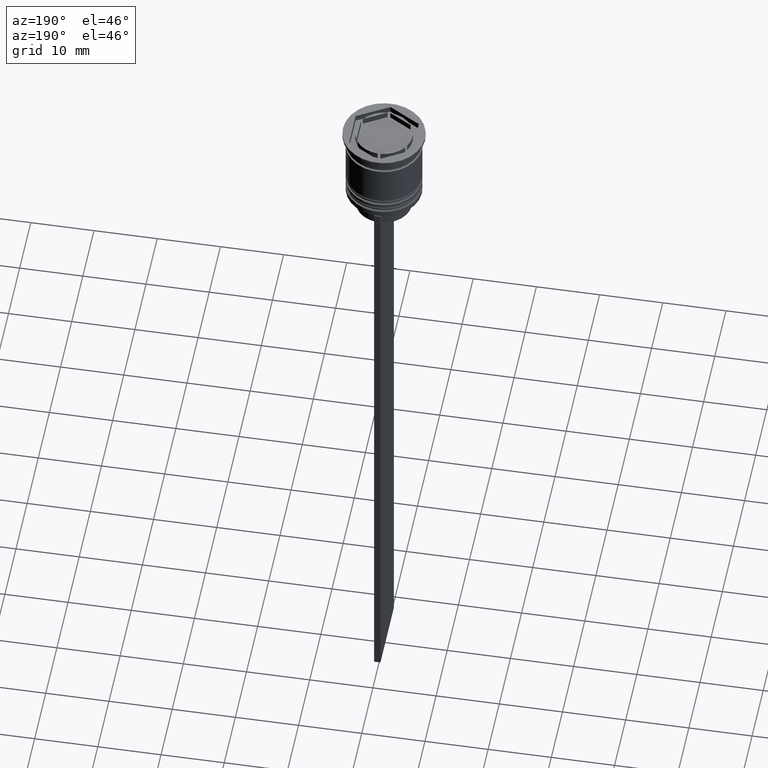
[diagram: clean part render]
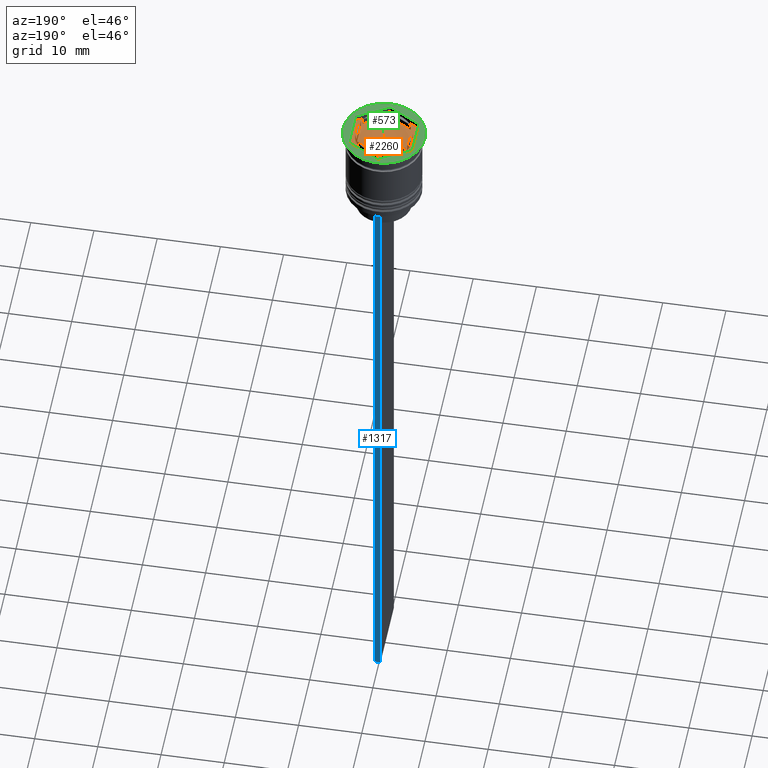
[diagram: same view with three faces highlighted in distinct colors, each labeled with its STEP entity id]
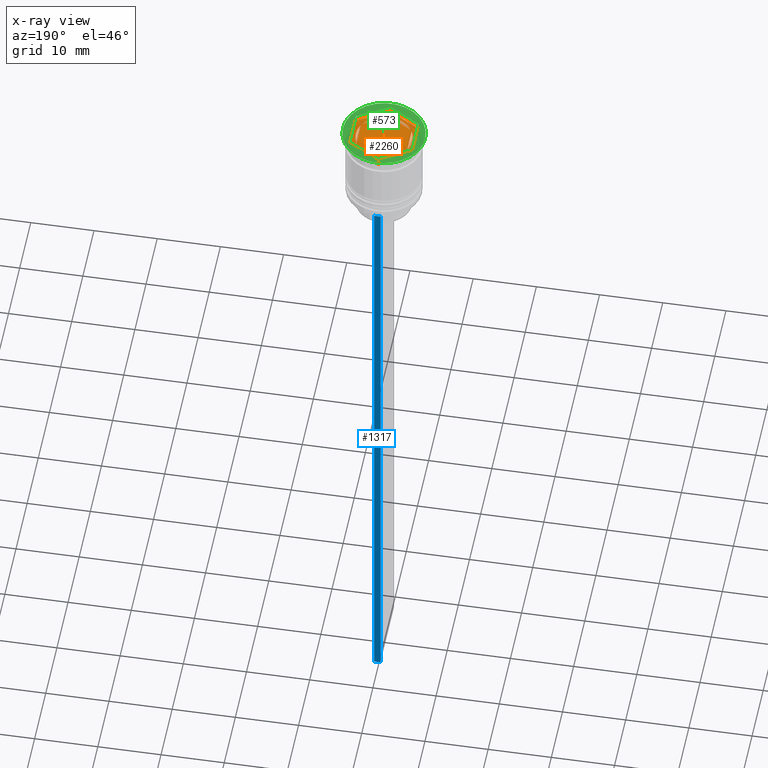
[diagram: x-ray of the same camera — body ghosted, the three highlighted faces saturated]
A machine part, auxiliary view with three faces highlighted in distinct colors.
The next image is the same camera in x-ray (body ghosted, the three faces saturated) — at least one of them is partly hidden behind the body in this view.
Their STEP definitions:

[orange] entity #2260 — the highlighted planar face has unit normal (0, 0, 1).
#28 = VERTEX_POINT ( 'NONE', #307 ) ;
#35 = DIRECTION ( 'NONE',  ( 0.8660254037844387076, -0.4999999999999998335, 0.000000000000000000 ) ) ;
#55 = VECTOR ( 'NONE', #1040, 1000.000000000000000 ) ;
#57 = CARTESIAN_POINT ( 'NONE',  ( -5.000000000000000888, -2.886751345948129543, -1.000000000000000000 ) ) ;
#58 = LINE ( 'NONE', #1206, #1661 ) ;
#102 = VERTEX_POINT ( 'NONE', #540 ) ;
#117 = EDGE_LOOP ( 'NONE', ( #816, #603, #1438 ) ) ;
#153 = CARTESIAN_POINT ( 'NONE',  ( 0.000000000000000000, 5.773502691896257311, -1.000000000000000000 ) ) ;
#163 = CARTESIAN_POINT ( 'NONE',  ( -5.000000000000000888, -2.886751345948129543, -1.000000000000000000 ) ) ;
#188 = LINE ( 'NONE', #2287, #2307 ) ;
#223 = DIRECTION ( 'NONE',  ( -1.877893248421448296E-16, -1.000000000000000000, 0.000000000000000000 ) ) ;
#231 = LINE ( 'NONE', #57, #1893 ) ;
#234 = ORIENTED_EDGE ( 'NONE', *, *, #894, .F. ) ;
#240 = DIRECTION ( 'NONE',  ( -0.8660254037844387076, 0.4999999999999997224, 0.000000000000000000 ) ) ;
#256 = DIRECTION ( 'NONE',  ( 0.000000000000000000, 0.000000000000000000, 1.000000000000000000 ) ) ;
#263 = CARTESIAN_POINT ( 'NONE',  ( -3.785357107135713939, 2.433325208733339018, -1.000000000000000888 ) ) ;
#266 = CARTESIAN_POINT ( 'NONE',  ( 5.000000000000000888, 2.886751345948129543, -1.000000000000000000 ) ) ;
#307 = CARTESIAN_POINT ( 'NONE',  ( 5.000000000000000000, -2.886751345948128655, -1.000000000000000000 ) ) ;
#312 = VECTOR ( 'NONE', #240, 1000.000000000000114 ) ;
#323 = DIRECTION ( 'NONE',  ( 1.000000000000000000, 0.000000000000000000, 0.000000000000000000 ) ) ;
#336 = VERTEX_POINT ( 'NONE', #1169 ) ;
#384 = DIRECTION ( 'NONE',  ( -0.8660254037844387076, -0.4999999999999998890, 0.000000000000000000 ) ) ;
#390 = EDGE_CURVE ( 'NONE', #1168, #1752, #1929, .T. ) ;
#393 = CARTESIAN_POINT ( 'NONE',  ( 5.000000000000000888, 2.886751345948129543, -1.000000000000000000 ) ) ;
#395 = ORIENTED_EDGE ( 'NONE', *, *, #390, .F. ) ;
#437 = VERTEX_POINT ( 'NONE', #1805 ) ;
#443 = LINE ( 'NONE', #1435, #1506 ) ;
#448 = DIRECTION ( 'NONE',  ( 1.000000000000000000, 0.000000000000000000, -0.000000000000000000 ) ) ;
#452 = DIRECTION ( 'NONE',  ( 0.000000000000000000, 0.000000000000000000, 1.000000000000000000 ) ) ;
#454 = DIRECTION ( 'NONE',  ( 0.000000000000000000, 0.000000000000000000, 1.000000000000000000 ) ) ;
#471 = VECTOR ( 'NONE', #384, 1000.000000000000114 ) ;
#490 = VERTEX_POINT ( 'NONE', #800 ) ;
#514 = VERTEX_POINT ( 'NONE', #690 ) ;
#540 = CARTESIAN_POINT ( 'NONE',  ( 3.785357107135712162, 2.433325208733341238, -1.000000000000000888 ) ) ;
#558 = VERTEX_POINT ( 'NONE', #2444 ) ;
#602 = DIRECTION ( 'NONE',  ( 0.000000000000000000, 0.000000000000000000, 1.000000000000000000 ) ) ;
#603 = ORIENTED_EDGE ( 'NONE', *, *, #1926, .F. ) ;
#616 = CARTESIAN_POINT ( 'NONE',  ( 0.000000000000000000, 0.000000000000000000, -1.000000000000000000 ) ) ;
#618 = VERTEX_POINT ( 'NONE', #1281 ) ;
#658 = VERTEX_POINT ( 'NONE', #2111 ) ;
#686 = EDGE_CURVE ( 'NONE', #995, #2229, #736, .T. ) ;
#690 = CARTESIAN_POINT ( 'NONE',  ( -4.000000000000000000, 2.061552812808831625, -1.000000000000000888 ) ) ;
#721 = ORIENTED_EDGE ( 'NONE', *, *, #1851, .F. ) ;
#726 = AXIS2_PLACEMENT_3D ( 'NONE', #1185, #1226, #1037 ) ;
#729 = VECTOR ( 'NONE', #2284, 1000.000000000000114 ) ;
#736 = LINE ( 'NONE', #1319, #729 ) ;
#741 = FACE_BOUND ( 'NONE', #2438, .T. ) ;
#742 = CARTESIAN_POINT ( 'NONE',  ( -0.2146428928642871992, -4.494878021542169755, -1.000000000000000888 ) ) ;
#763 = DIRECTION ( 'NONE',  ( 1.502314598737159278E-16, 1.000000000000000000, 0.000000000000000000 ) ) ;
#775 = CIRCLE ( 'NONE', #2428, 4.500000000000000888 ) ;
#791 = CARTESIAN_POINT ( 'NONE',  ( -4.000000000000000000, 2.309401076758502924, -1.000000000000000888 ) ) ;
#800 = CARTESIAN_POINT ( 'NONE',  ( 3.999999999999999112, -2.061552812808833846, -1.000000000000000888 ) ) ;
#813 = CIRCLE ( 'NONE', #1818, 4.500000000000000888 ) ;
#816 = ORIENTED_EDGE ( 'NONE', *, *, #1232, .F. ) ;
#825 = DIRECTION ( 'NONE',  ( 0.8660254037844385966, 0.4999999999999998890, 0.000000000000000000 ) ) ;
#835 = DIRECTION ( 'NONE',  ( 1.000000000000000000, 0.000000000000000000, 0.000000000000000000 ) ) ;
#878 = DIRECTION ( 'NONE',  ( 0.000000000000000000, 0.000000000000000000, 1.000000000000000000 ) ) ;
#881 = VERTEX_POINT ( 'NONE', #1760 ) ;
#894 = EDGE_CURVE ( 'NONE', #881, #490, #2161, .T. ) ;
#905 = FACE_BOUND ( 'NONE', #1800, .T. ) ;
#933 = CARTESIAN_POINT ( 'NONE',  ( -4.000000000000000000, -2.061552812808831625, -1.000000000000000888 ) ) ;
#951 = ORIENTED_EDGE ( 'NONE', *, *, #1517, .F. ) ;
#963 = FACE_BOUND ( 'NONE', #1628, .T. ) ;
#980 = AXIS2_PLACEMENT_3D ( 'NONE', #1557, #256, #448 ) ;
#981 = CARTESIAN_POINT ( 'NONE',  ( 4.000000000000000000, 2.309401076758504257, -1.000000000000000888 ) ) ;
#983 = ORIENTED_EDGE ( 'NONE', *, *, #1103, .F. ) ;
#995 = VERTEX_POINT ( 'NONE', #263 ) ;
#1037 = DIRECTION ( 'NONE',  ( 1.000000000000000000, 0.000000000000000000, 0.000000000000000000 ) ) ;
#1040 = DIRECTION ( 'NONE',  ( 0.000000000000000000, 1.000000000000000000, 0.000000000000000000 ) ) ;
#1049 = VERTEX_POINT ( 'NONE', #2360 ) ;
#1065 = AXIS2_PLACEMENT_3D ( 'NONE', #1966, #1245, #1976 ) ;
#1070 = CARTESIAN_POINT ( 'NONE',  ( 0.000000000000000000, 0.000000000000000000, -1.000000000000000000 ) ) ;
#1088 = EDGE_CURVE ( 'NONE', #1735, #1049, #231, .T. ) ;
#1103 = EDGE_CURVE ( 'NONE', #490, #881, #813, .T. ) ;
#1104 = CIRCLE ( 'NONE', #2266, 4.500000000000000888 ) ;
#1113 = VECTOR ( 'NONE', #35, 1000.000000000000114 ) ;
#1136 = LINE ( 'NONE', #1691, #1942 ) ;
#1161 = PLANE ( 'NONE',  #980 ) ;
#1168 = VERTEX_POINT ( 'NONE', #2242 ) ;
#1169 = CARTESIAN_POINT ( 'NONE',  ( 0.2146428928642876155, 4.494878021542170643, -1.000000000000000888 ) ) ;
#1185 = CARTESIAN_POINT ( 'NONE',  ( 0.000000000000000000, 0.000000000000000000, -1.000000000000000000 ) ) ;
#1206 = CARTESIAN_POINT ( 'NONE',  ( 5.612359739892467248E-18, -5.773502691896257311, -1.000000000000000000 ) ) ;
#1226 = DIRECTION ( 'NONE',  ( 0.000000000000000000, 0.000000000000000000, 1.000000000000000000 ) ) ;
#1232 = EDGE_CURVE ( 'NONE', #514, #618, #2427, .T. ) ;
#1245 = DIRECTION ( 'NONE',  ( 0.000000000000000000, 0.000000000000000000, 1.000000000000000000 ) ) ;
#1274 = EDGE_LOOP ( 'NONE', ( #1791, #2435, #1543, #2131, #1624, #2321 ) ) ;
#1275 = VERTEX_POINT ( 'NONE', #933 ) ;
#1278 = DIRECTION ( 'NONE',  ( 1.000000000000000000, 0.000000000000000000, 0.000000000000000000 ) ) ;
#1281 = CARTESIAN_POINT ( 'NONE',  ( -4.500000000000000888, 0.000000000000000000, -1.000000000000000000 ) ) ;
#1285 = LINE ( 'NONE', #153, #471 ) ;
#1288 = CARTESIAN_POINT ( 'NONE',  ( 0.000000000000000000, 0.000000000000000000, -1.000000000000000000 ) ) ;
#1319 = CARTESIAN_POINT ( 'NONE',  ( 4.336808689942017736E-16, 4.618802153517006737, -1.000000000000000888 ) ) ;
#1338 = AXIS2_PLACEMENT_3D ( 'NONE', #1070, #878, #1829 ) ;
#1346 = LINE ( 'NONE', #393, #312 ) ;
#1368 = LINE ( 'NONE', #791, #55 ) ;
#1379 = ORIENTED_EDGE ( 'NONE', *, *, #1547, .F. ) ;
#1405 = CARTESIAN_POINT ( 'NONE',  ( 0.000000000000000000, 0.000000000000000000, -1.000000000000000000 ) ) ;
#1435 = CARTESIAN_POINT ( 'NONE',  ( -5.000000000000000888, 2.886751345948128655, -1.000000000000000000 ) ) ;
#1438 = ORIENTED_EDGE ( 'NONE', *, *, #2099, .F. ) ;
#1505 = DIRECTION ( 'NONE',  ( 0.000000000000000000, 0.000000000000000000, 1.000000000000000000 ) ) ;
#1506 = VECTOR ( 'NONE', #2011, 1000.000000000000000 ) ;
#1517 = EDGE_CURVE ( 'NONE', #658, #558, #2259, .T. ) ;
#1530 = LINE ( 'NONE', #981, #1113 ) ;
#1531 = VECTOR ( 'NONE', #223, 1000.000000000000000 ) ;
#1543 = ORIENTED_EDGE ( 'NONE', *, *, #2075, .T. ) ;
#1547 = EDGE_CURVE ( 'NONE', #2229, #995, #775, .T. ) ;
#1557 = CARTESIAN_POINT ( 'NONE',  ( 0.000000000000000000, 0.000000000000000000, -1.000000000000000000 ) ) ;
#1569 = FACE_BOUND ( 'NONE', #117, .T. ) ;
#1582 = VECTOR ( 'NONE', #1692, 1000.000000000000114 ) ;
#1624 = ORIENTED_EDGE ( 'NONE', *, *, #2092, .T. ) ;
#1628 = EDGE_LOOP ( 'NONE', ( #951, #1810 ) ) ;
#1661 = VECTOR ( 'NONE', #825, 1000.000000000000227 ) ;
#1673 = DIRECTION ( 'NONE',  ( 0.8660254037844387076, -0.4999999999999997224, 0.000000000000000000 ) ) ;
#1682 = VERTEX_POINT ( 'NONE', #2473 ) ;
#1691 = CARTESIAN_POINT ( 'NONE',  ( -4.000000000000000000, -2.309401076758503368, -1.000000000000000888 ) ) ;
#1692 = DIRECTION ( 'NONE',  ( -0.8660254037844387076, -0.4999999999999998890, 0.000000000000000000 ) ) ;
#1725 = FACE_BOUND ( 'NONE', #1974, .T. ) ;
#1735 = VERTEX_POINT ( 'NONE', #163 ) ;
#1747 = EDGE_CURVE ( 'NONE', #558, #658, #2303, .T. ) ;
#1752 = VERTEX_POINT ( 'NONE', #742 ) ;
#1760 = CARTESIAN_POINT ( 'NONE',  ( 3.999999999999999112, 2.061552812808832513, -1.000000000000000888 ) ) ;
#1782 = FACE_BOUND ( 'NONE', #2002, .T. ) ;
#1791 = ORIENTED_EDGE ( 'NONE', *, *, #2377, .T. ) ;
#1800 = EDGE_LOOP ( 'NONE', ( #721, #2206 ) ) ;
#1805 = CARTESIAN_POINT ( 'NONE',  ( -5.000000000000000888, 2.886751345948128655, -1.000000000000000000 ) ) ;
#1810 = ORIENTED_EDGE ( 'NONE', *, *, #1747, .F. ) ;
#1818 = AXIS2_PLACEMENT_3D ( 'NONE', #1288, #1505, #1278 ) ;
#1829 = DIRECTION ( 'NONE',  ( 1.000000000000000000, 0.000000000000000000, 0.000000000000000000 ) ) ;
#1851 = EDGE_CURVE ( 'NONE', #102, #336, #2430, .T. ) ;
#1893 = VECTOR ( 'NONE', #1673, 1000.000000000000114 ) ;
#1926 = EDGE_CURVE ( 'NONE', #1275, #514, #1368, .T. ) ;
#1929 = CIRCLE ( 'NONE', #726, 4.500000000000000888 ) ;
#1942 = VECTOR ( 'NONE', #2104, 1000.000000000000227 ) ;
#1943 = CARTESIAN_POINT ( 'NONE',  ( 3.999999999999999112, -2.309401076758503812, -1.000000000000000888 ) ) ;
#1966 = CARTESIAN_POINT ( 'NONE',  ( 0.000000000000000000, 0.000000000000000000, -1.000000000000000000 ) ) ;
#1974 = EDGE_LOOP ( 'NONE', ( #1379, #2016 ) ) ;
#1976 = DIRECTION ( 'NONE',  ( 1.000000000000000000, 0.000000000000000000, 0.000000000000000000 ) ) ;
#2002 = EDGE_LOOP ( 'NONE', ( #395, #2005 ) ) ;
#2005 = ORIENTED_EDGE ( 'NONE', *, *, #2118, .F. ) ;
#2006 = VERTEX_POINT ( 'NONE', #266 ) ;
#2011 = DIRECTION ( 'NONE',  ( 0.000000000000000000, -1.000000000000000000, 0.000000000000000000 ) ) ;
#2016 = ORIENTED_EDGE ( 'NONE', *, *, #686, .F. ) ;
#2031 = AXIS2_PLACEMENT_3D ( 'NONE', #616, #602, #835 ) ;
#2075 = EDGE_CURVE ( 'NONE', #437, #1735, #443, .T. ) ;
#2092 = EDGE_CURVE ( 'NONE', #1049, #28, #58, .T. ) ;
#2099 = EDGE_CURVE ( 'NONE', #618, #1275, #1104, .T. ) ;
#2104 = DIRECTION ( 'NONE',  ( -0.8660254037844384856, 0.5000000000000001110, 0.000000000000000000 ) ) ;
#2111 = CARTESIAN_POINT ( 'NONE',  ( 0.2146428928642876155, -4.494878021542170643, -1.000000000000000888 ) ) ;
#2118 = EDGE_CURVE ( 'NONE', #1752, #1168, #1136, .T. ) ;
#2131 = ORIENTED_EDGE ( 'NONE', *, *, #1088, .T. ) ;
#2161 = LINE ( 'NONE', #1943, #1531 ) ;
#2169 = CARTESIAN_POINT ( 'NONE',  ( 0.000000000000000000, 0.000000000000000000, -1.000000000000000000 ) ) ;
#2172 = DIRECTION ( 'NONE',  ( 1.000000000000000000, 0.000000000000000000, 0.000000000000000000 ) ) ;
#2206 = ORIENTED_EDGE ( 'NONE', *, *, #2355, .F. ) ;
#2223 = EDGE_CURVE ( 'NONE', #28, #2006, #188, .T. ) ;
#2227 = EDGE_CURVE ( 'NONE', #1682, #437, #1285, .T. ) ;
#2229 = VERTEX_POINT ( 'NONE', #2457 ) ;
#2242 = CARTESIAN_POINT ( 'NONE',  ( -3.785357107135713939, -2.433325208733338130, -1.000000000000000888 ) ) ;
#2259 = CIRCLE ( 'NONE', #1065, 4.500000000000000888 ) ;
#2260 = ADVANCED_FACE ( 'NONE', ( #905, #741, #963, #1782, #1569, #1725, #2353 ), #1161, .T. ) ;
#2266 = AXIS2_PLACEMENT_3D ( 'NONE', #1405, #454, #2172 ) ;
#2278 = CARTESIAN_POINT ( 'NONE',  ( -8.673617379884035472E-16, -4.618802153517006737, -1.000000000000000888 ) ) ;
#2284 = DIRECTION ( 'NONE',  ( 0.8660254037844385966, 0.5000000000000001110, -0.000000000000000000 ) ) ;
#2287 = CARTESIAN_POINT ( 'NONE',  ( 5.000000000000000000, -2.886751345948128655, -1.000000000000000000 ) ) ;
#2303 = LINE ( 'NONE', #2278, #1582 ) ;
#2307 = VECTOR ( 'NONE', #763, 1000.000000000000000 ) ;
#2321 = ORIENTED_EDGE ( 'NONE', *, *, #2223, .T. ) ;
#2353 = FACE_OUTER_BOUND ( 'NONE', #1274, .T. ) ;
#2355 = EDGE_CURVE ( 'NONE', #336, #102, #1530, .T. ) ;
#2360 = CARTESIAN_POINT ( 'NONE',  ( 5.612359739892467248E-18, -5.773502691896257311, -1.000000000000000000 ) ) ;
#2377 = EDGE_CURVE ( 'NONE', #2006, #1682, #1346, .T. ) ;
#2427 = CIRCLE ( 'NONE', #1338, 4.500000000000000888 ) ;
#2428 = AXIS2_PLACEMENT_3D ( 'NONE', #2169, #452, #323 ) ;
#2430 = CIRCLE ( 'NONE', #2031, 4.500000000000000888 ) ;
#2435 = ORIENTED_EDGE ( 'NONE', *, *, #2227, .T. ) ;
#2438 = EDGE_LOOP ( 'NONE', ( #983, #234 ) ) ;
#2444 = CARTESIAN_POINT ( 'NONE',  ( 3.785357107135712162, -2.433325208733341238, -1.000000000000000888 ) ) ;
#2457 = CARTESIAN_POINT ( 'NONE',  ( -0.2146428928642867551, 4.494878021542170643, -1.000000000000000888 ) ) ;
#2473 = CARTESIAN_POINT ( 'NONE',  ( 0.000000000000000000, 5.773502691896257311, -1.000000000000000000 ) ) ;

[blue] entity #1317 — the highlighted planar face has unit normal (0, -1, -0).
#105 = CARTESIAN_POINT ( 'NONE',  ( -0.4999999999999997780, 6.000000000000000888, -112.5000000000000000 ) ) ;
#168 = PLANE ( 'NONE',  #2343 ) ;
#187 = DIRECTION ( 'NONE',  ( 0.000000000000000000, 0.000000000000000000, -1.000000000000000000 ) ) ;
#291 = EDGE_CURVE ( 'NONE', #2176, #1561, #2471, .T. ) ;
#335 = EDGE_CURVE ( 'NONE', #1634, #1565, #952, .T. ) ;
#375 = FACE_OUTER_BOUND ( 'NONE', #436, .T. ) ;
#436 = EDGE_LOOP ( 'NONE', ( #1513, #836, #2445, #2378 ) ) ;
#486 = CARTESIAN_POINT ( 'NONE',  ( -0.4999999999999997780, 6.000000000000001776, -12.50000000000000000 ) ) ;
#555 = CARTESIAN_POINT ( 'NONE',  ( 0.5000000000000002220, 6.000000000000000888, -0.4584054212077061097 ) ) ;
#768 = CARTESIAN_POINT ( 'NONE',  ( 0.5000000000000002220, 6.000000000000000888, -12.50000000000000000 ) ) ;
#783 = DIRECTION ( 'NONE',  ( 1.000000000000000000, 0.000000000000000000, 0.000000000000000000 ) ) ;
#836 = ORIENTED_EDGE ( 'NONE', *, *, #1258, .T. ) ;
#865 = CARTESIAN_POINT ( 'NONE',  ( 0.5000000000000002220, 6.000000000000000888, -112.5000000000000000 ) ) ;
#952 = LINE ( 'NONE', #1122, #1652 ) ;
#956 = LINE ( 'NONE', #1164, #972 ) ;
#968 = LINE ( 'NONE', #768, #2185 ) ;
#972 = VECTOR ( 'NONE', #2476, 1000.000000000000000 ) ;
#1122 = CARTESIAN_POINT ( 'NONE',  ( -0.4999999999999997780, 6.000000000000000888, -0.4584054212077061097 ) ) ;
#1164 = CARTESIAN_POINT ( 'NONE',  ( 0.5000000000000002220, 6.000000000000000888, -112.5000000000000000 ) ) ;
#1258 = EDGE_CURVE ( 'NONE', #1634, #2176, #968, .T. ) ;
#1263 = EDGE_CURVE ( 'NONE', #1561, #1565, #956, .T. ) ;
#1316 = CARTESIAN_POINT ( 'NONE',  ( 0.5000000000000002220, 6.000000000000000888, -0.4584054212077061097 ) ) ;
#1317 = ADVANCED_FACE ( 'NONE', ( #375 ), #168, .F. ) ;
#1513 = ORIENTED_EDGE ( 'NONE', *, *, #335, .F. ) ;
#1549 = DIRECTION ( 'NONE',  ( 0.000000000000000000, 0.000000000000000000, -1.000000000000000000 ) ) ;
#1561 = VERTEX_POINT ( 'NONE', #865 ) ;
#1565 = VERTEX_POINT ( 'NONE', #105 ) ;
#1634 = VERTEX_POINT ( 'NONE', #486 ) ;
#1652 = VECTOR ( 'NONE', #1895, 1000.000000000000000 ) ;
#1679 = CARTESIAN_POINT ( 'NONE',  ( 0.5000000000000002220, 6.000000000000000888, -12.50000000000000000 ) ) ;
#1730 = DIRECTION ( 'NONE',  ( 0.000000000000000000, -1.000000000000000000, -0.000000000000000000 ) ) ;
#1895 = DIRECTION ( 'NONE',  ( 0.000000000000000000, 0.000000000000000000, -1.000000000000000000 ) ) ;
#2176 = VERTEX_POINT ( 'NONE', #1679 ) ;
#2185 = VECTOR ( 'NONE', #783, 1000.000000000000000 ) ;
#2217 = VECTOR ( 'NONE', #187, 1000.000000000000000 ) ;
#2343 = AXIS2_PLACEMENT_3D ( 'NONE', #1316, #1730, #1549 ) ;
#2378 = ORIENTED_EDGE ( 'NONE', *, *, #1263, .T. ) ;
#2445 = ORIENTED_EDGE ( 'NONE', *, *, #291, .T. ) ;
#2471 = LINE ( 'NONE', #555, #2217 ) ;
#2476 = DIRECTION ( 'NONE',  ( -1.000000000000000000, 0.000000000000000000, 0.000000000000000000 ) ) ;

[green] entity #573 — the highlighted planar face has unit normal (0, -0, 1).
#17 = VERTEX_POINT ( 'NONE', #2049 ) ;
#101 = CARTESIAN_POINT ( 'NONE',  ( 0.000000000000000000, 0.000000000000000000, 0.000000000000000000 ) ) ;
#124 = EDGE_CURVE ( 'NONE', #2318, #642, #1216, .T. ) ;
#171 = VECTOR ( 'NONE', #1913, 1000.000000000000114 ) ;
#216 = VECTOR ( 'NONE', #1213, 1000.000000000000114 ) ;
#261 = CIRCLE ( 'NONE', #896, 6.500000000000000000 ) ;
#284 = CARTESIAN_POINT ( 'NONE',  ( 5.612359739892467248E-18, -5.773502691896257311, 0.000000000000000000 ) ) ;
#306 = EDGE_CURVE ( 'NONE', #1121, #1931, #1554, .T. ) ;
#310 = VERTEX_POINT ( 'NONE', #2325 ) ;
#362 = ORIENTED_EDGE ( 'NONE', *, *, #124, .T. ) ;
#372 = AXIS2_PLACEMENT_3D ( 'NONE', #1678, #1787, #2208 ) ;
#397 = LINE ( 'NONE', #1921, #1854 ) ;
#423 = LINE ( 'NONE', #790, #216 ) ;
#492 = ORIENTED_EDGE ( 'NONE', *, *, #793, .F. ) ;
#496 = VERTEX_POINT ( 'NONE', #815 ) ;
#541 = CARTESIAN_POINT ( 'NONE',  ( -6.500000000000000000, 7.960204194457795477E-16, 0.000000000000000000 ) ) ;
#573 = ADVANCED_FACE ( 'NONE', ( #2213, #678 ), #1822, .T. ) ;
#610 = DIRECTION ( 'NONE',  ( 0.8660254037844387076, -0.4999999999999997224, 0.000000000000000000 ) ) ;
#638 = EDGE_LOOP ( 'NONE', ( #362, #2493 ) ) ;
#642 = VERTEX_POINT ( 'NONE', #541 ) ;
#678 = FACE_OUTER_BOUND ( 'NONE', #638, .T. ) ;
#778 = DIRECTION ( 'NONE',  ( 0.000000000000000000, -1.000000000000000000, 0.000000000000000000 ) ) ;
#790 = CARTESIAN_POINT ( 'NONE',  ( 0.000000000000000000, 5.773502691896257311, 0.000000000000000000 ) ) ;
#793 = EDGE_CURVE ( 'NONE', #1931, #1985, #1956, .T. ) ;
#815 = CARTESIAN_POINT ( 'NONE',  ( 5.000000000000000000, -2.886751345948128655, 0.000000000000000000 ) ) ;
#844 = EDGE_LOOP ( 'NONE', ( #1715, #1196, #2381, #492, #1198, #925 ) ) ;
#896 = AXIS2_PLACEMENT_3D ( 'NONE', #1992, #2156, #2359 ) ;
#925 = ORIENTED_EDGE ( 'NONE', *, *, #2304, .F. ) ;
#1121 = VERTEX_POINT ( 'NONE', #1455 ) ;
#1196 = ORIENTED_EDGE ( 'NONE', *, *, #1279, .F. ) ;
#1198 = ORIENTED_EDGE ( 'NONE', *, *, #306, .F. ) ;
#1213 = DIRECTION ( 'NONE',  ( -0.8660254037844387076, -0.4999999999999998890, 0.000000000000000000 ) ) ;
#1216 = CIRCLE ( 'NONE', #372, 6.500000000000000000 ) ;
#1230 = VECTOR ( 'NONE', #1236, 1000.000000000000227 ) ;
#1236 = DIRECTION ( 'NONE',  ( 0.8660254037844385966, 0.4999999999999998890, 0.000000000000000000 ) ) ;
#1279 = EDGE_CURVE ( 'NONE', #496, #310, #397, .T. ) ;
#1293 = VECTOR ( 'NONE', #778, 1000.000000000000000 ) ;
#1360 = EDGE_CURVE ( 'NONE', #310, #17, #1524, .T. ) ;
#1398 = EDGE_CURVE ( 'NONE', #642, #2318, #261, .T. ) ;
#1420 = LINE ( 'NONE', #2188, #1230 ) ;
#1422 = VECTOR ( 'NONE', #610, 1000.000000000000114 ) ;
#1455 = CARTESIAN_POINT ( 'NONE',  ( -5.000000000000000888, 2.886751345948128655, 0.000000000000000000 ) ) ;
#1524 = LINE ( 'NONE', #1937, #171 ) ;
#1554 = LINE ( 'NONE', #1701, #1293 ) ;
#1558 = CARTESIAN_POINT ( 'NONE',  ( -5.000000000000000888, -2.886751345948129543, 0.000000000000000000 ) ) ;
#1616 = AXIS2_PLACEMENT_3D ( 'NONE', #101, #2226, #1633 ) ;
#1633 = DIRECTION ( 'NONE',  ( 1.000000000000000000, 0.000000000000000000, 0.000000000000000000 ) ) ;
#1678 = CARTESIAN_POINT ( 'NONE',  ( 0.000000000000000000, 0.000000000000000000, 0.000000000000000000 ) ) ;
#1701 = CARTESIAN_POINT ( 'NONE',  ( -5.000000000000000888, 2.886751345948128655, 0.000000000000000000 ) ) ;
#1715 = ORIENTED_EDGE ( 'NONE', *, *, #1360, .F. ) ;
#1787 = DIRECTION ( 'NONE',  ( -0.000000000000000000, -0.000000000000000000, 1.000000000000000000 ) ) ;
#1792 = CARTESIAN_POINT ( 'NONE',  ( -5.000000000000000888, -2.886751345948129543, 0.000000000000000000 ) ) ;
#1822 = PLANE ( 'NONE',  #1616 ) ;
#1854 = VECTOR ( 'NONE', #1902, 1000.000000000000000 ) ;
#1902 = DIRECTION ( 'NONE',  ( 1.502314598737159278E-16, 1.000000000000000000, 0.000000000000000000 ) ) ;
#1913 = DIRECTION ( 'NONE',  ( -0.8660254037844387076, 0.4999999999999997224, 0.000000000000000000 ) ) ;
#1921 = CARTESIAN_POINT ( 'NONE',  ( 5.000000000000000000, -2.886751345948128655, 0.000000000000000000 ) ) ;
#1931 = VERTEX_POINT ( 'NONE', #1558 ) ;
#1937 = CARTESIAN_POINT ( 'NONE',  ( 5.000000000000000888, 2.886751345948129543, 0.000000000000000000 ) ) ;
#1956 = LINE ( 'NONE', #1792, #1422 ) ;
#1971 = CARTESIAN_POINT ( 'NONE',  ( 6.500000000000000000, 0.000000000000000000, 0.000000000000000000 ) ) ;
#1985 = VERTEX_POINT ( 'NONE', #284 ) ;
#1992 = CARTESIAN_POINT ( 'NONE',  ( 0.000000000000000000, 0.000000000000000000, 0.000000000000000000 ) ) ;
#2049 = CARTESIAN_POINT ( 'NONE',  ( 0.000000000000000000, 5.773502691896257311, 0.000000000000000000 ) ) ;
#2084 = EDGE_CURVE ( 'NONE', #1985, #496, #1420, .T. ) ;
#2156 = DIRECTION ( 'NONE',  ( -0.000000000000000000, -0.000000000000000000, 1.000000000000000000 ) ) ;
#2188 = CARTESIAN_POINT ( 'NONE',  ( 5.612359739892467248E-18, -5.773502691896257311, 0.000000000000000000 ) ) ;
#2208 = DIRECTION ( 'NONE',  ( 1.000000000000000000, 0.000000000000000000, 0.000000000000000000 ) ) ;
#2213 = FACE_BOUND ( 'NONE', #844, .T. ) ;
#2226 = DIRECTION ( 'NONE',  ( 0.000000000000000000, -0.000000000000000000, 1.000000000000000000 ) ) ;
#2304 = EDGE_CURVE ( 'NONE', #17, #1121, #423, .T. ) ;
#2318 = VERTEX_POINT ( 'NONE', #1971 ) ;
#2325 = CARTESIAN_POINT ( 'NONE',  ( 5.000000000000000888, 2.886751345948129543, 0.000000000000000000 ) ) ;
#2359 = DIRECTION ( 'NONE',  ( 1.000000000000000000, 0.000000000000000000, 0.000000000000000000 ) ) ;
#2381 = ORIENTED_EDGE ( 'NONE', *, *, #2084, .F. ) ;
#2493 = ORIENTED_EDGE ( 'NONE', *, *, #1398, .T. ) ;